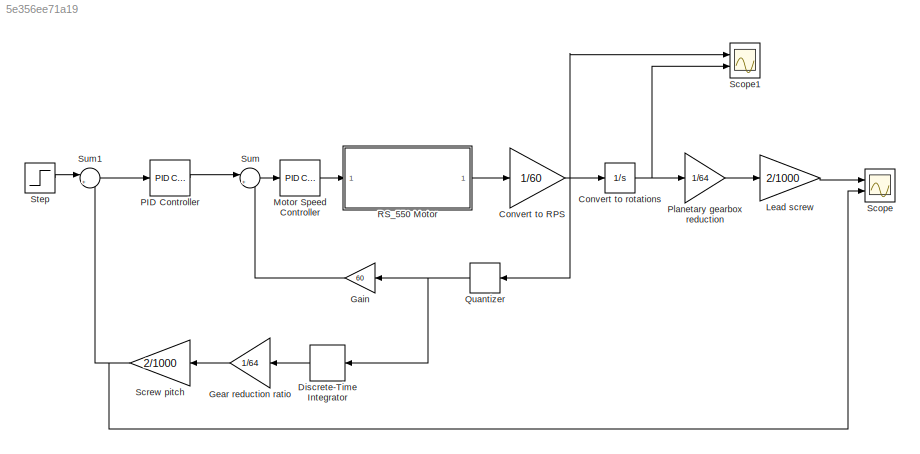
MODEL slx_5e356ee71a19
KIND model
CONFIG AbsTol = auto
CONFIG EnableMultiTasking = off
CONFIG FixedStep = auto
CONFIG MaxStep = auto
CONFIG MinStep = auto
CONFIG RelTol = 1e-3
CONFIG SampleTimeConstraint = Unconstrained
CONFIG SolverName = VariableStepAuto
CONFIG StartTime = 0.0
CONFIG StopTime = 3
BLOCK [Gain] Convert to RPS
  Gain = 1/60
BLOCK [Integrator] Convert to rotations
  Ports = [1, 1]
BLOCK [DiscreteIntegrator] Discrete-Time Integrator
  ICPrevOutput = DiscIntNeverNeededParam
  ICPrevScaledInput = DiscIntNeverNeededParam
  InitialConditionSetting = Auto
  NameLocation = top
  Ports = [1, 1]
  SampleTime = 1/500000
BLOCK [Gain] Gain
  Gain = 60
  NameLocation = top
BLOCK [Gain] Gear reduction ratio
  Gain = 1/64
  NameLocation = top
BLOCK [Gain] Lead screw
  Gain = 2/1000
BLOCK [Reference] Motor Speed Controller  REF=pid_lib/PID Controller
  Ports = [1, 1]
  SourceBlock = pid_lib/PID Controller
  SourceProductBaseCode = SL
  SourceType = PID 1dof
BLOCK [Reference] PID Controller  REF=pid_lib/PID Controller
  Ports = [1, 1]
  SourceBlock = pid_lib/PID Controller
  SourceProductBaseCode = SL
  SourceType = PID 1dof
BLOCK [Gain] Planetary gearbox reduction
  Gain = 1/64
BLOCK [Quantizer] Quantizer
  NameLocation = top
  QuantizationInterval = 1/500000
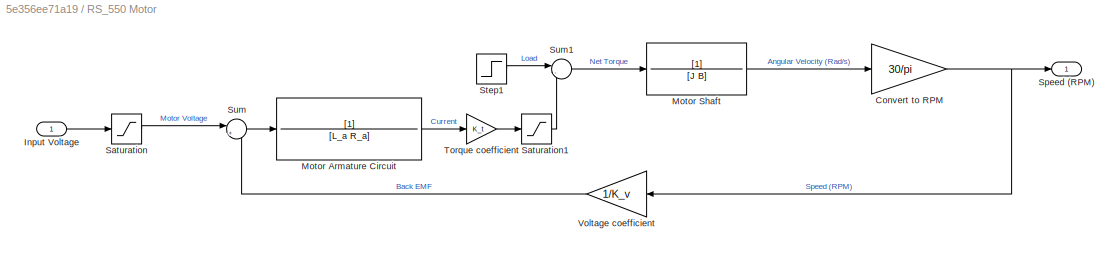
BLOCK [SubSystem] RS_550 Motor
  Ports = [1, 1]
  RequestExecContextInheritance = off
BLOCK [Gain] RS_550 Motor/Convert to RPM
  Gain = 30/pi
BLOCK [Inport] RS_550 Motor/Input Voltage
BLOCK [TransferFcn] RS_550 Motor/Motor Armature Circuit
  Denominator = [L_a R_a]
BLOCK [TransferFcn] RS_550 Motor/Motor Shaft
  Denominator = [J B]
BLOCK [Saturate] RS_550 Motor/Saturation
  LowerLimit = -24
  UpperLimit = 24
BLOCK [Saturate] RS_550 Motor/Saturation1
  LowerLimit = -0.02
  UpperLimit = 0.02
BLOCK [Outport] RS_550 Motor/Speed (RPM)
BLOCK [Step] RS_550 Motor/Step1
  After = 0
  SampleTime = 0
  Time = 2
BLOCK [Sum] RS_550 Motor/Sum
  Inputs = |+-
  Ports = [2, 1]
BLOCK [Sum] RS_550 Motor/Sum1
  Inputs = |-+
  NameLocation = top
  Ports = [2, 1]
BLOCK [Gain] RS_550 Motor/Torque coefficient
  Gain = K_t
BLOCK [Gain] RS_550 Motor/Voltage coefficient
  Gain = 1/K_v
  NameLocation = top
BLOCK [Scope] Scope
  Floating = off
  NumInputPorts = 2
  Ports = [2]
  ScopeSpecificationString = Simulink.scopes.TimeScopeBlockCfg('CurrentConfiguration', extmgr.ConfigurationSet(extmgr.Configuration('Core','General UI',true),extmgr.Configuration('Core','Source UI',true),extmgr.Configuration('Sources','WiredSimulink',true),extmgr.Configuration('Visuals','Time Domain',true,'SerializedDisplays',{struct('MinYLimReal','-0.000002','MaxYLimReal','0.000018','YLabelReal','','MinYLimMag','0.000000','M...<+1442ch>
BLOCK [Scope] Scope1
  Floating = off
  NumInputPorts = 2
  Ports = [2]
  ScopeSpecificationString = Simulink.scopes.TimeScopeBlockCfg('CurrentConfiguration', extmgr.ConfigurationSet(extmgr.Configuration('Core','General UI',true),extmgr.Configuration('Core','Source UI',true),extmgr.Configuration('Sources','WiredSimulink',true,'DataLoggingVariableName','ScopeData1'),extmgr.Configuration('Visuals','Time Domain',true,'SerializedDisplays',{struct('MinYLimReal','-0.0133','MaxYLimReal','0.08999','YLabe...<+1874ch>
BLOCK [Gain] Screw pitch
  Gain = 2/1000
  NameLocation = top
BLOCK [Step] Step
  After = 0.1
  SampleTime = 0
BLOCK [Sum] Sum
  Inputs = |+-
  Ports = [2, 1]
BLOCK [Sum] Sum1
  Inputs = |+-
  Ports = [2, 1]
NET Convert to RPS:1 -> Convert to rotations:1, Quantizer:1, Scope1:1
NET Convert to rotations:1 -> Planetary gearbox reduction:1, Scope1:2
LINE Discrete-Time Integrator:1 -> Gear reduction ratio:1
LINE Gain:1 -> Sum:2
LINE Gear reduction ratio:1 -> Screw pitch:1
LINE Lead screw:1 -> Scope:1
LINE Motor Speed Controller:1 -> RS_550 Motor:1
LINE PID Controller:1 -> Sum:1
LINE Planetary gearbox reduction:1 -> Lead screw:1
NET Quantizer:1 -> Discrete-Time Integrator:1, Gain:1
NET RS_550 Motor/Convert to RPM:1 -> RS_550 Motor/Speed (RPM):1, RS_550 Motor/Voltage coefficient:1
LINE RS_550 Motor/Input Voltage:1 -> RS_550 Motor/Saturation:1
LINE RS_550 Motor/Motor Armature Circuit:1 -> RS_550 Motor/Torque coefficient:1
LINE RS_550 Motor/Motor Shaft:1 -> RS_550 Motor/Convert to RPM:1
LINE RS_550 Motor/Saturation1:1 -> RS_550 Motor/Sum1:2
LINE RS_550 Motor/Saturation:1 -> RS_550 Motor/Sum:1
LINE RS_550 Motor/Step1:1 -> RS_550 Motor/Sum1:1
LINE RS_550 Motor/Sum1:1 -> RS_550 Motor/Motor Shaft:1
LINE RS_550 Motor/Sum:1 -> RS_550 Motor/Motor Armature Circuit:1
LINE RS_550 Motor/Torque coefficient:1 -> RS_550 Motor/Saturation1:1
LINE RS_550 Motor/Voltage coefficient:1 -> RS_550 Motor/Sum:2
LINE RS_550 Motor:1 -> Convert to RPS:1
NET Screw pitch:1 -> Scope:2, Sum1:2
LINE Step:1 -> Sum1:1
LINE Sum1:1 -> PID Controller:1
LINE Sum:1 -> Motor Speed Controller:1
note: NET lines group one-source signal fan-out (src -> all destinations, sorted); 1:1 wires keep LINE
